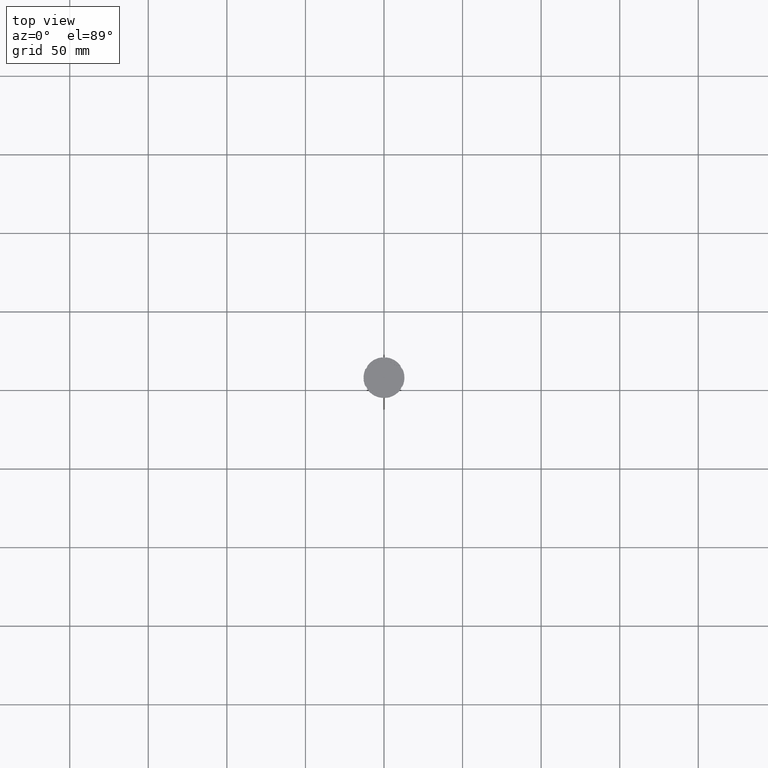
[diagram: clean part render]
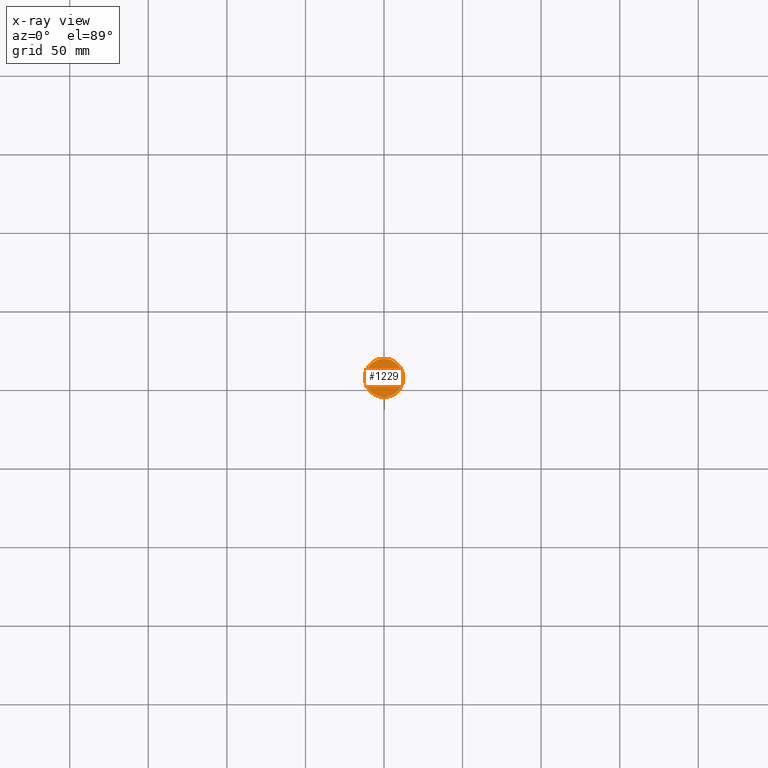
[diagram: x-ray — body ghosted, one internal face saturated and labeled with its STEP entity id]
A machine part, top view, then the same camera in x-ray: the body is ghosted and one INTERNAL B-rep face — a face not visible from any outside direction — is saturated and labeled: STEP entity #1229.
In plain terms, the highlighted planar face has unit normal (0, 0, -1).
Its self-contained STEP definition (entity closure, byte-faithful):
#98 = CARTESIAN_POINT ( 'NONE',  ( 0.000000000000000000, 0.000000000000000000, -12.00000000000000000 ) ) ;
#100 = DIRECTION ( 'NONE',  ( 0.000000000000000000, 0.000000000000000000, -1.000000000000000000 ) ) ;
#205 = AXIS2_PLACEMENT_3D ( 'NONE', #1950, #1111, #2647 ) ;
#349 = CARTESIAN_POINT ( 'NONE',  ( -12.20000000000000639, 0.000000000000000000, -12.00000000000000000 ) ) ;
#973 = AXIS2_PLACEMENT_3D ( 'NONE', #1215, #100, #1803 ) ;
#1024 = DIRECTION ( 'NONE',  ( -1.000000000000000000, 0.000000000000000000, 0.000000000000000000 ) ) ;
#1111 = DIRECTION ( 'NONE',  ( -0.000000000000000000, -0.000000000000000000, 1.000000000000000000 ) ) ;
#1131 = EDGE_CURVE ( 'NONE', #2011, #2060, #2061, .T. ) ;
#1215 = CARTESIAN_POINT ( 'NONE',  ( 0.000000000000000000, 0.000000000000000000, -12.00000000000000000 ) ) ;
#1229 = ADVANCED_FACE ( 'NONE', ( #1647 ), #1830, .F. ) ;
#1322 = EDGE_CURVE ( 'NONE', #2060, #2011, #1929, .T. ) ;
#1423 = EDGE_LOOP ( 'NONE', ( #2215, #2466 ) ) ;
#1647 = FACE_OUTER_BOUND ( 'NONE', #1423, .T. ) ;
#1651 = CARTESIAN_POINT ( 'NONE',  ( 12.20000000000000639, 1.512438796946981880E-15, -12.00000000000000000 ) ) ;
#1705 = AXIS2_PLACEMENT_3D ( 'NONE', #98, #1857, #1024 ) ;
#1803 = DIRECTION ( 'NONE',  ( -1.000000000000000000, 0.000000000000000000, -0.000000000000000000 ) ) ;
#1830 = PLANE ( 'NONE',  #973 ) ;
#1857 = DIRECTION ( 'NONE',  ( -0.000000000000000000, -0.000000000000000000, 1.000000000000000000 ) ) ;
#1929 = CIRCLE ( 'NONE', #1705, 12.20000000000000639 ) ;
#1950 = CARTESIAN_POINT ( 'NONE',  ( 0.000000000000000000, 0.000000000000000000, -12.00000000000000000 ) ) ;
#2011 = VERTEX_POINT ( 'NONE', #349 ) ;
#2060 = VERTEX_POINT ( 'NONE', #1651 ) ;
#2061 = CIRCLE ( 'NONE', #205, 12.20000000000000639 ) ;
#2215 = ORIENTED_EDGE ( 'NONE', *, *, #1131, .T. ) ;
#2466 = ORIENTED_EDGE ( 'NONE', *, *, #1322, .T. ) ;
#2647 = DIRECTION ( 'NONE',  ( -1.000000000000000000, 0.000000000000000000, 0.000000000000000000 ) ) ;